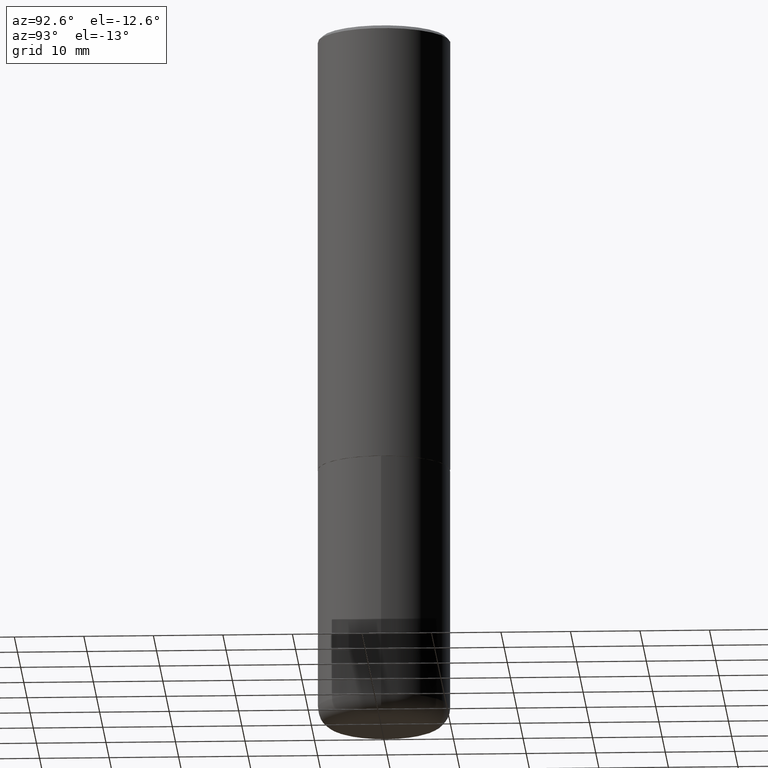
[diagram: clean part render]
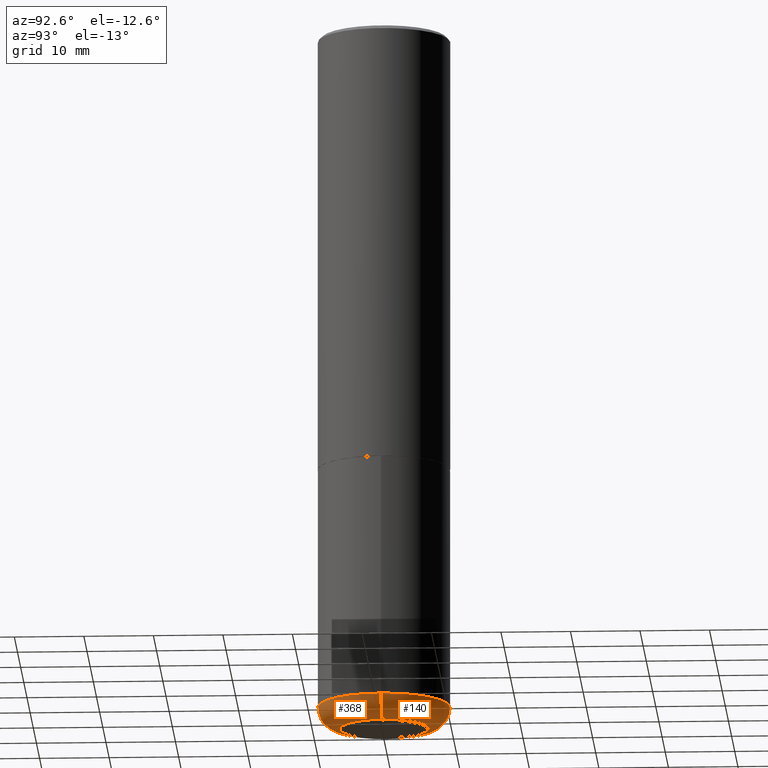
[diagram: same view with one multi-face feature highlighted, each face labeled with its STEP entity id]
A machine part, auxiliary view. The highlighted faces form ONE feature: a constant-radius fillet chain: 2 tangent blend faces with common blend radius 3.175 mm. The faces share edges in the B-rep.
Their STEP definitions:
[1] entity #368 (Torus):
#11 = DIRECTION ( 'NONE',  ( 1.000000000000000000, -6.982962677686269077E-15, 0.000000000000000000 ) ) ;
#14 = DIRECTION ( 'NONE',  ( 1.000000000000000000, -6.982962677686263555E-15, 4.883557194083111219E-29 ) ) ;
#18 = EDGE_CURVE ( 'NONE', #86, #278, #70, .T. ) ;
#19 = DIRECTION ( 'NONE',  ( -6.982962677686266711E-15, -1.000000000000000000, 3.491481338843145583E-15 ) ) ;
#20 = AXIS2_PLACEMENT_3D ( 'NONE', #167, #362, #69 ) ;
#31 = AXIS2_PLACEMENT_3D ( 'NONE', #242, #19, #213 ) ;
#39 = EDGE_CURVE ( 'NONE', #196, #377, #205, .T. ) ;
#69 = DIRECTION ( 'NONE',  ( 1.000000000000000000, -6.982962677686263555E-15, 0.000000000000000000 ) ) ;
#70 = CIRCLE ( 'NONE', #232, 0.2500000000000000555 ) ;
#86 = VERTEX_POINT ( 'NONE', #101 ) ;
#101 = CARTESIAN_POINT ( 'NONE',  ( -0.2500000000000000555, -1.152726172244457105E-14, -4.000000000000000000 ) ) ;
#108 = CIRCLE ( 'NONE', #329, 0.1249999999999999306 ) ;
#117 = DIRECTION ( 'NONE',  ( -1.000000000000000000, 7.105427357601000281E-15, 0.000000000000000000 ) ) ;
#136 = DIRECTION ( 'NONE',  ( -2.445468806185136597E-29, 3.491481338843145583E-15, 1.000000000000000000 ) ) ;
#151 = AXIS2_PLACEMENT_3D ( 'NONE', #188, #136, #14 ) ;
#167 = CARTESIAN_POINT ( 'NONE',  ( 9.476191623967404313E-29, -1.352949018801718908E-14, -3.875000000000000000 ) ) ;
#173 = EDGE_CURVE ( 'NONE', #278, #377, #401, .T. ) ;
#179 = EDGE_CURVE ( 'NONE', #86, #196, #108, .T. ) ;
#188 = CARTESIAN_POINT ( 'NONE',  ( 9.476191623967404313E-29, -1.352949018801718908E-14, -3.875000000000000000 ) ) ;
#189 = EDGE_LOOP ( 'NONE', ( #323, #383, #413, #382 ) ) ;
#196 = VERTEX_POINT ( 'NONE', #414 ) ;
#200 = TOROIDAL_SURFACE ( 'NONE', #151, 0.2500000000000000555, 0.1249999999999999167 ) ;
#205 = CIRCLE ( 'NONE', #20, 0.3749999999999999445 ) ;
#207 = CARTESIAN_POINT ( 'NONE',  ( 0.2500000000000000555, -1.571166602479415059E-14, -4.000000000000000000 ) ) ;
#211 = CARTESIAN_POINT ( 'NONE',  ( 0.3749999999999999445, -1.614810119214953752E-14, -3.875000000000000000 ) ) ;
#213 = DIRECTION ( 'NONE',  ( 1.000000000000000000, -6.982962677686266711E-15, 0.000000000000000000 ) ) ;
#232 = AXIS2_PLACEMENT_3D ( 'NONE', #390, #330, #11 ) ;
#242 = CARTESIAN_POINT ( 'NONE',  ( 0.2500000000000000555, -1.527523085743875734E-14, -3.875000000000000000 ) ) ;
#276 = CARTESIAN_POINT ( 'NONE',  ( -0.2500000000000000555, -1.175313334861693862E-14, -3.875000000000000000 ) ) ;
#278 = VERTEX_POINT ( 'NONE', #207 ) ;
#323 = ORIENTED_EDGE ( 'NONE', *, *, #179, .F. ) ;
#329 = AXIS2_PLACEMENT_3D ( 'NONE', #276, #409, #117 ) ;
#330 = DIRECTION ( 'NONE',  ( -2.445468806185136597E-29, 3.491481338843145583E-15, 1.000000000000000000 ) ) ;
#362 = DIRECTION ( 'NONE',  ( -2.445468806185136597E-29, 3.491481338843145583E-15, 1.000000000000000000 ) ) ;
#368 = ADVANCED_FACE ( 'NONE', ( #405 ), #200, .T. ) ;
#377 = VERTEX_POINT ( 'NONE', #211 ) ;
#382 = ORIENTED_EDGE ( 'NONE', *, *, #39, .F. ) ;
#383 = ORIENTED_EDGE ( 'NONE', *, *, #18, .T. ) ;
#390 = CARTESIAN_POINT ( 'NONE',  ( 9.781875224740546387E-29, -1.396592535537258233E-14, -4.000000000000000000 ) ) ;
#401 = CIRCLE ( 'NONE', #31, 0.1249999999999999306 ) ;
#405 = FACE_OUTER_BOUND ( 'NONE', #189, .T. ) ;
#409 = DIRECTION ( 'NONE',  ( 7.105427357601001859E-15, 1.000000000000000000, -3.491481338843145583E-15 ) ) ;
#413 = ORIENTED_EDGE ( 'NONE', *, *, #173, .T. ) ;
#414 = CARTESIAN_POINT ( 'NONE',  ( -0.3749999999999999445, -1.086495492891681496E-14, -3.875000000000000000 ) ) ;
[2] entity #140 (Torus):
#7 = TOROIDAL_SURFACE ( 'NONE', #121, 0.2500000000000000555, 0.1249999999999999167 ) ;
#19 = DIRECTION ( 'NONE',  ( -6.982962677686266711E-15, -1.000000000000000000, 3.491481338843145583E-15 ) ) ;
#31 = AXIS2_PLACEMENT_3D ( 'NONE', #242, #19, #213 ) ;
#52 = DIRECTION ( 'NONE',  ( -2.445468806185136597E-29, 3.491481338843145583E-15, 1.000000000000000000 ) ) ;
#53 = EDGE_LOOP ( 'NONE', ( #348, #258, #192, #156 ) ) ;
#62 = AXIS2_PLACEMENT_3D ( 'NONE', #403, #142, #273 ) ;
#75 = AXIS2_PLACEMENT_3D ( 'NONE', #119, #52, #220 ) ;
#86 = VERTEX_POINT ( 'NONE', #101 ) ;
#101 = CARTESIAN_POINT ( 'NONE',  ( -0.2500000000000000555, -1.152726172244457105E-14, -4.000000000000000000 ) ) ;
#108 = CIRCLE ( 'NONE', #329, 0.1249999999999999306 ) ;
#117 = DIRECTION ( 'NONE',  ( -1.000000000000000000, 7.105427357601000281E-15, 0.000000000000000000 ) ) ;
#119 = CARTESIAN_POINT ( 'NONE',  ( 9.781875224740546387E-29, -1.396592535537258233E-14, -4.000000000000000000 ) ) ;
#121 = AXIS2_PLACEMENT_3D ( 'NONE', #280, #305, #177 ) ;
#129 = CIRCLE ( 'NONE', #75, 0.2500000000000000555 ) ;
#140 = ADVANCED_FACE ( 'NONE', ( #345 ), #7, .T. ) ;
#142 = DIRECTION ( 'NONE',  ( -2.445468806185136597E-29, 3.491481338843145583E-15, 1.000000000000000000 ) ) ;
#156 = ORIENTED_EDGE ( 'NONE', *, *, #173, .F. ) ;
#173 = EDGE_CURVE ( 'NONE', #278, #377, #401, .T. ) ;
#177 = DIRECTION ( 'NONE',  ( 1.000000000000000000, -6.982962677686263555E-15, 4.883557194083111219E-29 ) ) ;
#179 = EDGE_CURVE ( 'NONE', #86, #196, #108, .T. ) ;
#192 = ORIENTED_EDGE ( 'NONE', *, *, #379, .F. ) ;
#196 = VERTEX_POINT ( 'NONE', #414 ) ;
#207 = CARTESIAN_POINT ( 'NONE',  ( 0.2500000000000000555, -1.571166602479415059E-14, -4.000000000000000000 ) ) ;
#211 = CARTESIAN_POINT ( 'NONE',  ( 0.3749999999999999445, -1.614810119214953752E-14, -3.875000000000000000 ) ) ;
#213 = DIRECTION ( 'NONE',  ( 1.000000000000000000, -6.982962677686266711E-15, 0.000000000000000000 ) ) ;
#220 = DIRECTION ( 'NONE',  ( 1.000000000000000000, -6.982962677686269077E-15, 0.000000000000000000 ) ) ;
#242 = CARTESIAN_POINT ( 'NONE',  ( 0.2500000000000000555, -1.527523085743875734E-14, -3.875000000000000000 ) ) ;
#252 = CIRCLE ( 'NONE', #62, 0.3749999999999999445 ) ;
#258 = ORIENTED_EDGE ( 'NONE', *, *, #179, .T. ) ;
#273 = DIRECTION ( 'NONE',  ( 1.000000000000000000, -6.982962677686263555E-15, 0.000000000000000000 ) ) ;
#276 = CARTESIAN_POINT ( 'NONE',  ( -0.2500000000000000555, -1.175313334861693862E-14, -3.875000000000000000 ) ) ;
#278 = VERTEX_POINT ( 'NONE', #207 ) ;
#280 = CARTESIAN_POINT ( 'NONE',  ( 9.476191623967404313E-29, -1.352949018801718908E-14, -3.875000000000000000 ) ) ;
#305 = DIRECTION ( 'NONE',  ( -2.445468806185136597E-29, 3.491481338843145583E-15, 1.000000000000000000 ) ) ;
#306 = EDGE_CURVE ( 'NONE', #278, #86, #129, .T. ) ;
#329 = AXIS2_PLACEMENT_3D ( 'NONE', #276, #409, #117 ) ;
#345 = FACE_OUTER_BOUND ( 'NONE', #53, .T. ) ;
#348 = ORIENTED_EDGE ( 'NONE', *, *, #306, .T. ) ;
#377 = VERTEX_POINT ( 'NONE', #211 ) ;
#379 = EDGE_CURVE ( 'NONE', #377, #196, #252, .T. ) ;
#401 = CIRCLE ( 'NONE', #31, 0.1249999999999999306 ) ;
#403 = CARTESIAN_POINT ( 'NONE',  ( 9.476191623967404313E-29, -1.352949018801718908E-14, -3.875000000000000000 ) ) ;
#409 = DIRECTION ( 'NONE',  ( 7.105427357601001859E-15, 1.000000000000000000, -3.491481338843145583E-15 ) ) ;
#414 = CARTESIAN_POINT ( 'NONE',  ( -0.3749999999999999445, -1.086495492891681496E-14, -3.875000000000000000 ) ) ;